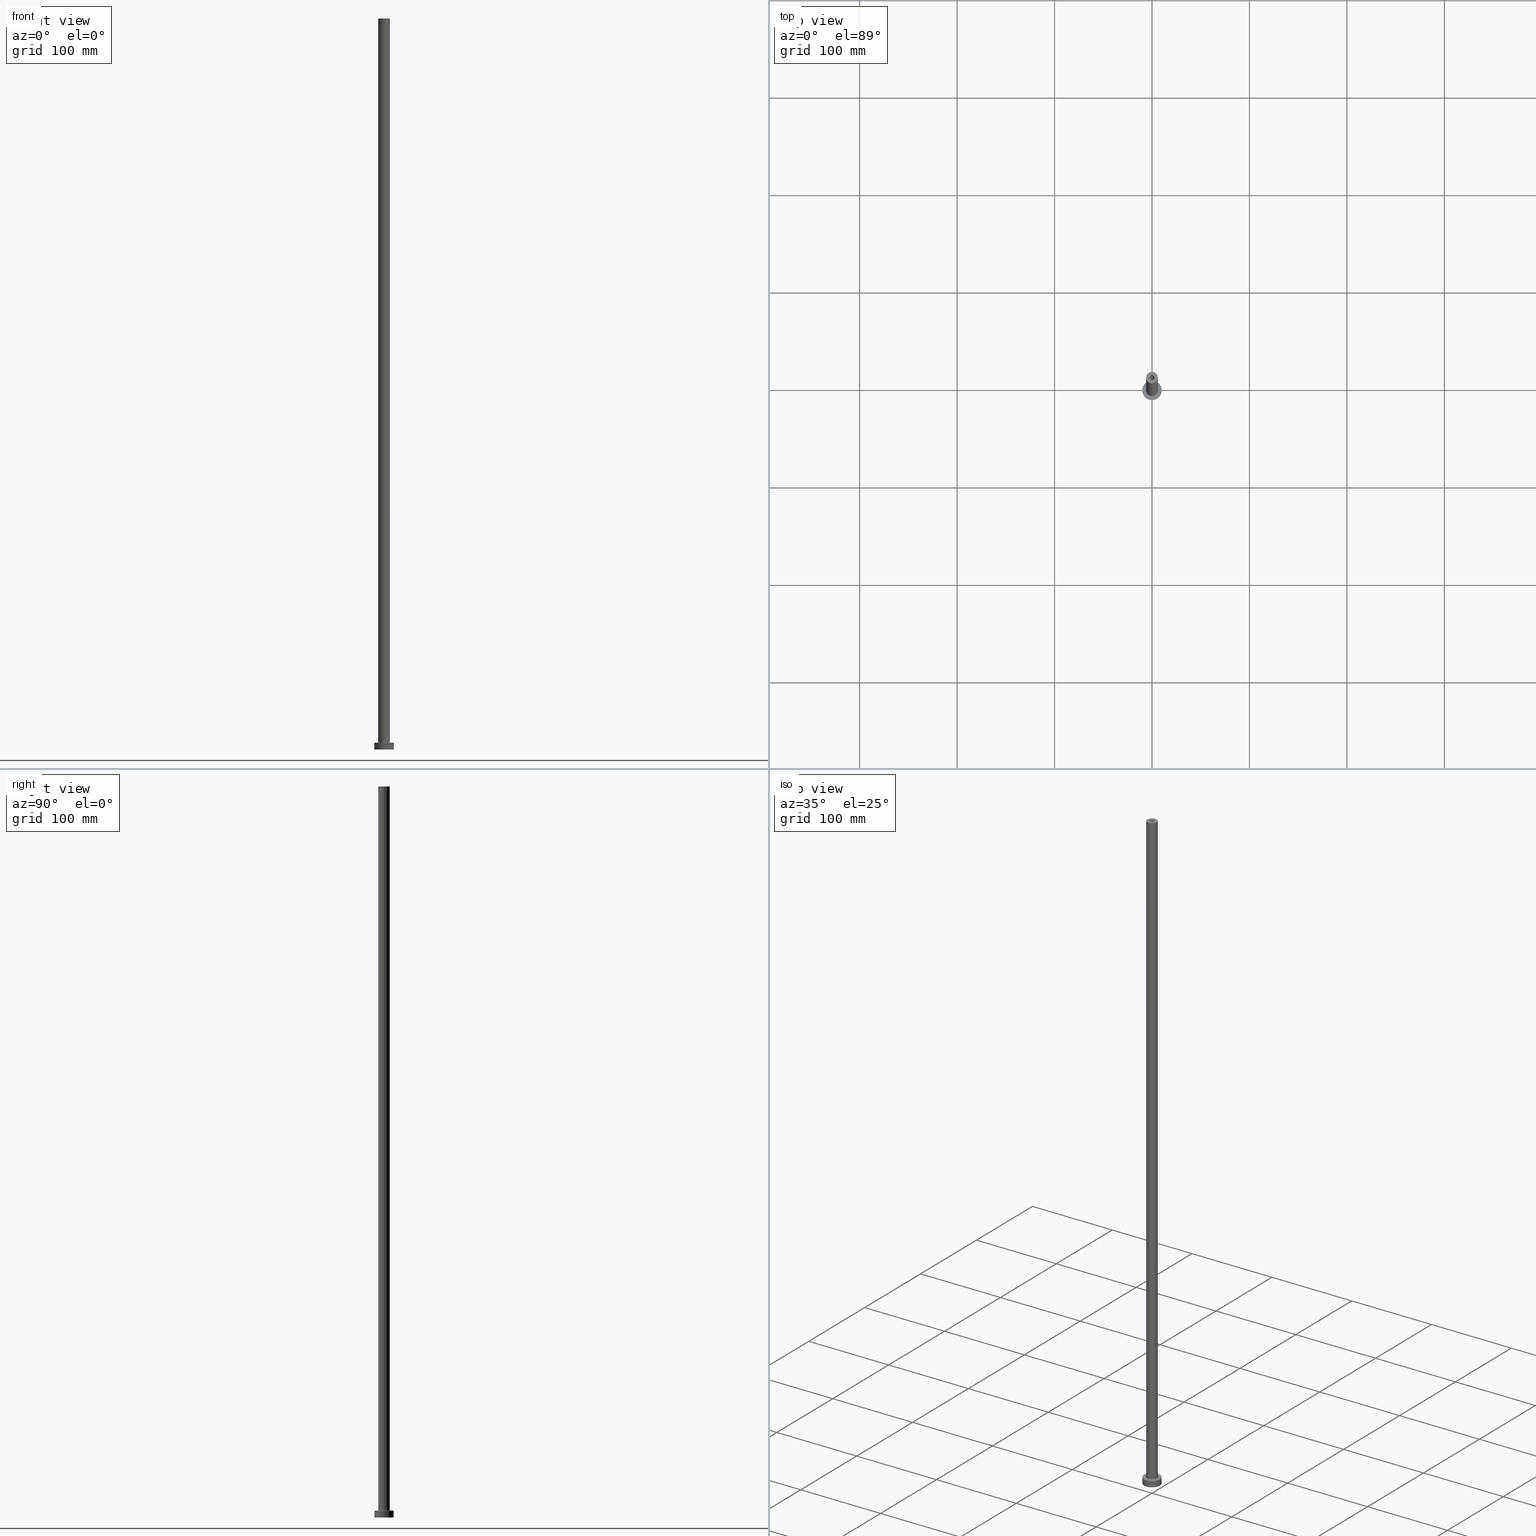
[diagram: canonical four-view strip — front | top / right | iso, engineering-drawing reading convention]
A machine part, canonical four-view strip (front | top / right | iso — engineering-drawing reading convention). The complete STEP part file that produces these views, byte-faithful:
ISO-10303-21;
HEADER;
FILE_DESCRIPTION (( 'STEP AP203' ),
    '1' );
FILE_NAME ('6461.STEP',
    '2023-02-13T16:43:49',
    ( '' ),
    ( '' ),
    'SwSTEP 2.0',
    'SolidWorks 2019',
    '' );
FILE_SCHEMA (( 'CONFIG_CONTROL_DESIGN' ));
ENDSEC;

DATA;
#1 =( GEOMETRIC_REPRESENTATION_CONTEXT ( 3 ) GLOBAL_UNCERTAINTY_ASSIGNED_CONTEXT ( ( #57 ) ) GLOBAL_UNIT_ASSIGNED_CONTEXT ( ( #332, #123, #370 ) ) REPRESENTATION_CONTEXT ( 'NONE', 'WORKASPACE' ) );
#2 = ORIENTED_EDGE ( 'NONE', *, *, #72, .F. ) ;
#3 = CARTESIAN_POINT ( 'NONE',  ( 0.000000000000000000, 0.000000000000000000, 0.000000000000000000 ) ) ;
#4 = EDGE_LOOP ( 'NONE', ( #216, #187 ) ) ;
#5 = CARTESIAN_POINT ( 'NONE',  ( -6.000000000000000888, 0.000000000000000000, 7.499999999999951150 ) ) ;
#6 = AXIS2_PLACEMENT_3D ( 'NONE', #267, #193, #406 ) ;
#7 = AXIS2_PLACEMENT_3D ( 'NONE', #391, #131, #94 ) ;
#8 = DIRECTION ( 'NONE',  ( -0.000000000000000000, -0.000000000000000000, -1.000000000000000000 ) ) ;
#9 = DIRECTION ( 'NONE',  ( -0.000000000000000000, -0.000000000000000000, -1.000000000000000000 ) ) ;
#10 = DIRECTION ( 'NONE',  ( 0.000000000000000000, 0.000000000000000000, 1.000000000000000000 ) ) ;
#11 = PERSON_AND_ORGANIZATION ( #323, #385 ) ;
#12 = DIRECTION ( 'NONE',  ( -0.000000000000000000, -0.000000000000000000, -1.000000000000000000 ) ) ;
#13 = AXIS2_PLACEMENT_3D ( 'NONE', #258, #41, #328 ) ;
#14 = CC_DESIGN_APPROVAL ( #132, ( #245 ) ) ;
#15 = DIRECTION ( 'NONE',  ( 0.000000000000000000, 0.000000000000000000, -1.000000000000000000 ) ) ;
#16 = APPROVAL_ROLE ( '' ) ;
#17 = EDGE_CURVE ( 'NONE', #221, #397, #121, .T. ) ;
#18 = DIRECTION ( 'NONE',  ( 0.000000000000000000, 0.000000000000000000, -1.000000000000000000 ) ) ;
#19 = DIRECTION ( 'NONE',  ( 0.000000000000000000, 0.000000000000000000, 1.000000000000000000 ) ) ;
#20 = PERSON_AND_ORGANIZATION ( #323, #385 ) ;
#21 = EDGE_LOOP ( 'NONE', ( #353, #398, #395, #177 ) ) ;
#22 = AXIS2_PLACEMENT_3D ( 'NONE', #263, #9, #160 ) ;
#23 = CIRCLE ( 'NONE', #399, 6.000000000000000888 ) ;
#24 = CARTESIAN_POINT ( 'NONE',  ( 0.000000000000000000, 0.000000000000000000, 705.0000000000000000 ) ) ;
#25 = CC_DESIGN_PERSON_AND_ORGANIZATION_ASSIGNMENT ( #298, #164, ( #245 ) ) ;
#26 = ORIENTED_EDGE ( 'NONE', *, *, #428, .F. ) ;
#27 = FACE_OUTER_BOUND ( 'NONE', #414, .T. ) ;
#28 = COORDINATED_UNIVERSAL_TIME_OFFSET ( 1, 0, .AHEAD. ) ;
#29 = ORIENTED_EDGE ( 'NONE', *, *, #77, .F. ) ;
#30 = CARTESIAN_POINT ( 'NONE',  ( 0.000000000000000000, 0.000000000000000000, 712.4953318805775098 ) ) ;
#31 = DATE_AND_TIME ( #318, #363 ) ;
#32 = EDGE_LOOP ( 'NONE', ( #202, #2 ) ) ;
#33 = DIRECTION ( 'NONE',  ( 0.000000000000000000, 0.000000000000000000, -1.000000000000000000 ) ) ;
#34 = EDGE_LOOP ( 'NONE', ( #387, #142 ) ) ;
#35 = EDGE_CURVE ( 'NONE', #100, #430, #178, .T. ) ;
#36 = CARTESIAN_POINT ( 'NONE',  ( 2.500000000000000000, 3.061616997868383141E-16, 705.0000000000000000 ) ) ;
#37 = DIRECTION ( 'NONE',  ( -0.000000000000000000, -0.000000000000000000, -1.000000000000000000 ) ) ;
#38 = AXIS2_PLACEMENT_3D ( 'NONE', #61, #380, #322 ) ;
#39 = DIRECTION ( 'NONE',  ( 1.224646799147353207E-16, 1.000000000000000000, -0.000000000000000000 ) ) ;
#40 = EDGE_CURVE ( 'NONE', #63, #96, #195, .T. ) ;
#41 = DIRECTION ( 'NONE',  ( 0.000000000000000000, 0.000000000000000000, 1.000000000000000000 ) ) ;
#42 = CARTESIAN_POINT ( 'NONE',  ( 0.000000000000000000, 0.000000000000000000, 750.0000000000000000 ) ) ;
#43 = APPLICATION_PROTOCOL_DEFINITION ( 'international standard', 'config_control_design', 1994, #224 ) ;
#44 = CIRCLE ( 'NONE', #38, 2.500000000000000000 ) ;
#45 = CARTESIAN_POINT ( 'NONE',  ( 0.000000000000000000, 0.000000000000000000, 7.000000000000000000 ) ) ;
#46 = EDGE_CURVE ( 'NONE', #96, #63, #80, .T. ) ;
#47 = DIRECTION ( 'NONE',  ( 1.000000000000000000, 0.000000000000000000, 0.000000000000000000 ) ) ;
#48 = DIRECTION ( 'NONE',  ( 1.000000000000000000, 0.000000000000000000, 0.000000000000000000 ) ) ;
#49 = FACE_OUTER_BOUND ( 'NONE', #449, .T. ) ;
#50 = APPLICATION_CONTEXT ( 'configuration controlled 3d designs of mechanical parts and assemblies' ) ;
#51 = DIRECTION ( 'NONE',  ( 0.000000000000000000, 0.000000000000000000, 1.000000000000000000 ) ) ;
#52 = ADVANCED_FACE ( 'NONE', ( #227 ), #365, .F. ) ;
#53 = COORDINATED_UNIVERSAL_TIME_OFFSET ( 1, 0, .AHEAD. ) ;
#54 = VECTOR ( 'NONE', #15, 1000.000000000000000 ) ;
#55 = AXIS2_PLACEMENT_3D ( 'NONE', #65, #58, #165 ) ;
#56 = CARTESIAN_POINT ( 'NONE',  ( 0.000000000000000000, 0.000000000000000000, 0.000000000000000000 ) ) ;
#57 = UNCERTAINTY_MEASURE_WITH_UNIT (LENGTH_MEASURE( 1.000000000000000082E-05 ), #332, 'distance_accuracy_value', 'NONE');
#58 = DIRECTION ( 'NONE',  ( -0.000000000000000000, -0.000000000000000000, -1.000000000000000000 ) ) ;
#59 = EDGE_LOOP ( 'NONE', ( #392, #98 ) ) ;
#60 = EDGE_CURVE ( 'NONE', #430, #100, #383, .T. ) ;
#61 = CARTESIAN_POINT ( 'NONE',  ( 0.000000000000000000, 0.000000000000000000, 705.0000000000000000 ) ) ;
#62 = CALENDAR_DATE ( 2023, 13, 2 ) ;
#63 = VERTEX_POINT ( 'NONE', #218 ) ;
#64 = CC_DESIGN_APPROVAL ( #326, ( #266 ) ) ;
#65 = CARTESIAN_POINT ( 'NONE',  ( 0.000000000000000000, 0.000000000000000000, 750.0000000000000000 ) ) ;
#66 = PERSON_AND_ORGANIZATION ( #323, #385 ) ;
#67 = VERTEX_POINT ( 'NONE', #359 ) ;
#68 = CARTESIAN_POINT ( 'NONE',  ( 2.649999999999999911, 3.245314017740485962E-16, 705.0000000000000000 ) ) ;
#69 = VERTEX_POINT ( 'NONE', #36 ) ;
#70 = DIRECTION ( 'NONE',  ( 0.000000000000000000, -1.000000000000000000, 0.000000000000000000 ) ) ;
#71 = VERTEX_POINT ( 'NONE', #324 ) ;
#72 = EDGE_CURVE ( 'NONE', #364, #71, #206, .T. ) ;
#73 = AXIS2_PLACEMENT_3D ( 'NONE', #184, #111, #327 ) ;
#74 = VECTOR ( 'NONE', #12, 1000.000000000000000 ) ;
#75 = DIRECTION ( 'NONE',  ( 1.000000000000000000, 0.000000000000000000, 0.000000000000000000 ) ) ;
#76 = ORIENTED_EDGE ( 'NONE', *, *, #140, .T. ) ;
#77 = EDGE_CURVE ( 'NONE', #313, #459, #337, .T. ) ;
#78 = ORIENTED_EDGE ( 'NONE', *, *, #147, .T. ) ;
#79 = VECTOR ( 'NONE', #301, 1000.000000000000000 ) ;
#80 = CIRCLE ( 'NONE', #13, 10.00000000000000000 ) ;
#81 = APPROVAL_PERSON_ORGANIZATION ( #168, #203, #386 ) ;
#82 = DIRECTION ( 'NONE',  ( 0.000000000000000000, 0.000000000000000000, -1.000000000000000000 ) ) ;
#83 = ORIENTED_EDGE ( 'NONE', *, *, #106, .T. ) ;
#84 = PLANE ( 'NONE',  #217 ) ;
#85 = CARTESIAN_POINT ( 'NONE',  ( -10.00000000000000000, 0.000000000000000000, 7.000000000000000000 ) ) ;
#86 = DIRECTION ( 'NONE',  ( 0.000000000000000000, 0.000000000000000000, 1.000000000000000000 ) ) ;
#87 = CIRCLE ( 'NONE', #208, 10.00000000000000000 ) ;
#88 = DIRECTION ( 'NONE',  ( 0.000000000000000000, 0.000000000000000000, 1.000000000000000000 ) ) ;
#89 = DIRECTION ( 'NONE',  ( 0.000000000000000000, 0.000000000000000000, 1.000000000000000000 ) ) ;
#90 = DIRECTION ( 'NONE',  ( -0.000000000000000000, -0.000000000000000000, -1.000000000000000000 ) ) ;
#91 = DIRECTION ( 'NONE',  ( 1.000000000000000000, 0.000000000000000000, 0.000000000000000000 ) ) ;
#92 = FACE_OUTER_BOUND ( 'NONE', #382, .T. ) ;
#93 = DIRECTION ( 'NONE',  ( 1.000000000000000000, 0.000000000000000000, 0.000000000000000000 ) ) ;
#94 = DIRECTION ( 'NONE',  ( -1.000000000000000000, 0.000000000000000000, 0.000000000000000000 ) ) ;
#95 = SECURITY_CLASSIFICATION_LEVEL ( 'unclassified' ) ;
#96 = VERTEX_POINT ( 'NONE', #196 ) ;
#97 = DIRECTION ( 'NONE',  ( 1.000000000000000000, 0.000000000000000000, 0.000000000000000000 ) ) ;
#98 = ORIENTED_EDGE ( 'NONE', *, *, #60, .F. ) ;
#99 = CARTESIAN_POINT ( 'NONE',  ( 0.000000000000000000, 0.000000000000000000, 712.4953318805775098 ) ) ;
#100 = VERTEX_POINT ( 'NONE', #117 ) ;
#101 = AXIS2_PLACEMENT_3D ( 'NONE', #331, #88, #297 ) ;
#102 = SECURITY_CLASSIFICATION ( '', '', #95 ) ;
#103 = DIRECTION ( 'NONE',  ( -1.000000000000000000, 0.000000000000000000, 0.000000000000000000 ) ) ;
#104 = ORIENTED_EDGE ( 'NONE', *, *, #192, .T. ) ;
#105 = FACE_OUTER_BOUND ( 'NONE', #285, .T. ) ;
#106 = EDGE_CURVE ( 'NONE', #313, #63, #304, .T. ) ;
#107 = ORIENTED_EDGE ( 'NONE', *, *, #46, .F. ) ;
#108 = DIRECTION ( 'NONE',  ( 1.000000000000000000, 0.000000000000000000, 0.000000000000000000 ) ) ;
#109 = DIRECTION ( 'NONE',  ( 0.000000000000000000, 0.000000000000000000, 1.000000000000000000 ) ) ;
#110 = APPROVAL_PERSON_ORGANIZATION ( #373, #132, #16 ) ;
#111 = DIRECTION ( 'NONE',  ( 0.000000000000000000, 0.000000000000000000, 1.000000000000000000 ) ) ;
#112 = ADVANCED_FACE ( 'NONE', ( #408, #234 ), #155, .F. ) ;
#113 = ORIENTED_EDGE ( 'NONE', *, *, #354, .F. ) ;
#114 = VERTEX_POINT ( 'NONE', #333 ) ;
#115 = CIRCLE ( 'NONE', #296, 6.500000000000000888 ) ;
#116 = EDGE_LOOP ( 'NONE', ( #457, #244, #76, #113 ) ) ;
#117 = CARTESIAN_POINT ( 'NONE',  ( -2.500000000000000000, 0.000000000000000000, 750.0000000000000000 ) ) ;
#118 = ADVANCED_FACE ( 'NONE', ( #49 ), #435, .T. ) ;
#119 = APPROVAL_DATE_TIME ( #188, #132 ) ;
#120 = CARTESIAN_POINT ( 'NONE',  ( 0.000000000000000000, 0.000000000000000000, 7.000000000000000000 ) ) ;
#121 = CIRCLE ( 'NONE', #356, 0.5000000000000004441 ) ;
#122 = APPROVAL_PERSON_ORGANIZATION ( #264, #326, #228 ) ;
#123 =( NAMED_UNIT ( * ) PLANE_ANGLE_UNIT ( ) SI_UNIT ( $, .RADIAN. ) );
#124 = EDGE_CURVE ( 'NONE', #288, #221, #161, .T. ) ;
#125 = FACE_OUTER_BOUND ( 'NONE', #34, .T. ) ;
#126 = CARTESIAN_POINT ( 'NONE',  ( 0.000000000000000000, 0.000000000000000000, 705.0000000000000000 ) ) ;
#127 = DIRECTION ( 'NONE',  ( -0.000000000000000000, -0.000000000000000000, -1.000000000000000000 ) ) ;
#128 = DATE_AND_TIME ( #308, #442 ) ;
#129 = CARTESIAN_POINT ( 'NONE',  ( 0.000000000000000000, 0.000000000000000000, 705.0000000000000000 ) ) ;
#130 = VECTOR ( 'NONE', #336, 1000.000000000000000 ) ;
#131 = DIRECTION ( 'NONE',  ( -0.000000000000000000, -0.000000000000000000, -1.000000000000000000 ) ) ;
#132 = APPROVAL ( #305, 'NEUR�EN�' ) ;
#133 = EDGE_LOOP ( 'NONE', ( #207, #149, #181, #421 ) ) ;
#134 = CARTESIAN_POINT ( 'NONE',  ( 0.000000000000000000, 0.000000000000000000, 750.0000000000000000 ) ) ;
#135 = ORIENTED_EDGE ( 'NONE', *, *, #445, .F. ) ;
#136 = CARTESIAN_POINT ( 'NONE',  ( 0.000000000000000000, 0.000000000000000000, 750.0000000000000000 ) ) ;
#137 = PERSON_AND_ORGANIZATION_ROLE ( 'design_supplier' ) ;
#138 = EDGE_LOOP ( 'NONE', ( #107, #453 ) ) ;
#139 = AXIS2_PLACEMENT_3D ( 'NONE', #404, #89, #238 ) ;
#140 = EDGE_CURVE ( 'NONE', #100, #295, #157, .T. ) ;
#141 = CARTESIAN_POINT ( 'NONE',  ( 10.00000000000000000, 1.224646799147353256E-15, 7.000000000000000000 ) ) ;
#142 = ORIENTED_EDGE ( 'NONE', *, *, #77, .T. ) ;
#143 = DESIGN_CONTEXT ( 'detailed design', #50, 'design' ) ;
#144 = CARTESIAN_POINT ( 'NONE',  ( 2.649999999999999911, 3.245314017740485962E-16, 0.000000000000000000 ) ) ;
#145 = ORIENTED_EDGE ( 'NONE', *, *, #438, .F. ) ;
#146 = CARTESIAN_POINT ( 'NONE',  ( -6.500000000000000888, 7.960204194457796463E-16, 7.499999999999951150 ) ) ;
#147 = EDGE_CURVE ( 'NONE', #71, #364, #411, .T. ) ;
#148 = CC_DESIGN_APPROVAL ( #203, ( #102 ) ) ;
#149 = ORIENTED_EDGE ( 'NONE', *, *, #152, .T. ) ;
#150 = ORIENTED_EDGE ( 'NONE', *, *, #124, .T. ) ;
#151 = DIRECTION ( 'NONE',  ( -1.000000000000000000, 1.224646799147351482E-16, 0.000000000000000000 ) ) ;
#152 = EDGE_CURVE ( 'NONE', #289, #364, #334, .T. ) ;
#153 = AXIS2_PLACEMENT_3D ( 'NONE', #42, #109, #75 ) ;
#154 = AXIS2_PLACEMENT_3D ( 'NONE', #30, #172, #311 ) ;
#155 = PLANE ( 'NONE',  #362 ) ;
#156 = LINE ( 'NONE', #191, #130 ) ;
#157 = LINE ( 'NONE', #338, #79 ) ;
#158 = CC_DESIGN_PERSON_AND_ORGANIZATION_ASSIGNMENT ( #20, #240, ( #266 ) ) ;
#159 = CARTESIAN_POINT ( 'NONE',  ( -10.00000000000000000, 0.000000000000000000, 7.000000000000000000 ) ) ;
#160 = DIRECTION ( 'NONE',  ( -1.000000000000000000, 0.000000000000000000, 0.000000000000000000 ) ) ;
#161 = CIRCLE ( 'NONE', #418, 6.000000000000000888 ) ;
#162 = AXIS2_PLACEMENT_3D ( 'NONE', #24, #450, #204 ) ;
#163 = DIRECTION ( 'NONE',  ( 1.000000000000000000, 0.000000000000000000, -0.000000000000000000 ) ) ;
#164 = PERSON_AND_ORGANIZATION_ROLE ( 'creator' ) ;
#165 = DIRECTION ( 'NONE',  ( -1.000000000000000000, 0.000000000000000000, 0.000000000000000000 ) ) ;
#166 = ADVANCED_FACE ( 'NONE', ( #403, #125 ), #84, .T. ) ;
#167 = FACE_OUTER_BOUND ( 'NONE', #279, .T. ) ;
#168 = PERSON_AND_ORGANIZATION ( #323, #385 ) ;
#169 = CIRCLE ( 'NONE', #310, 6.500000000000000888 ) ;
#170 = CYLINDRICAL_SURFACE ( 'NONE', #190, 2.649999999999999911 ) ;
#171 = ORIENTED_EDGE ( 'NONE', *, *, #366, .F. ) ;
#172 = DIRECTION ( 'NONE',  ( 0.000000000000000000, 0.000000000000000000, -1.000000000000000000 ) ) ;
#173 = APPROVAL_DATE_TIME ( #31, #203 ) ;
#174 = CC_DESIGN_PERSON_AND_ORGANIZATION_ASSIGNMENT ( #66, #176, ( #102 ) ) ;
#175 = PLANE ( 'NONE',  #412 ) ;
#176 = PERSON_AND_ORGANIZATION_ROLE ( 'classification_officer' ) ;
#177 = ORIENTED_EDGE ( 'NONE', *, *, #140, .F. ) ;
#178 = CIRCLE ( 'NONE', #73, 2.500000000000000000 ) ;
#179 = CARTESIAN_POINT ( 'NONE',  ( 6.000000000000000888, 7.347880794884119736E-16, 750.0000000000000000 ) ) ;
#180 = ORIENTED_EDGE ( 'NONE', *, *, #106, .F. ) ;
#181 = ORIENTED_EDGE ( 'NONE', *, *, #72, .T. ) ;
#182 = DIRECTION ( 'NONE',  ( 1.000000000000000000, 0.000000000000000000, 0.000000000000000000 ) ) ;
#183 = AXIS2_PLACEMENT_3D ( 'NONE', #286, #424, #108 ) ;
#184 = CARTESIAN_POINT ( 'NONE',  ( 0.000000000000000000, 0.000000000000000000, 750.0000000000000000 ) ) ;
#185 = ORIENTED_EDGE ( 'NONE', *, *, #379, .F. ) ;
#186 = EDGE_CURVE ( 'NONE', #67, #221, #444, .T. ) ;
#187 = ORIENTED_EDGE ( 'NONE', *, *, #354, .T. ) ;
#188 = DATE_AND_TIME ( #197, #394 ) ;
#189 = AXIS2_PLACEMENT_3D ( 'NONE', #461, #37, #182 ) ;
#190 = AXIS2_PLACEMENT_3D ( 'NONE', #99, #18, #341 ) ;
#191 = CARTESIAN_POINT ( 'NONE',  ( 2.500000000000000000, 3.061616997868383141E-16, 750.0000000000000000 ) ) ;
#192 = EDGE_CURVE ( 'NONE', #114, #397, #115, .T. ) ;
#193 = DIRECTION ( 'NONE',  ( 0.000000000000000000, 0.000000000000000000, 1.000000000000000000 ) ) ;
#194 = ADVANCED_BREP_SHAPE_REPRESENTATION ( '6461', ( #432, #139 ), #1 ) ;
#195 = CIRCLE ( 'NONE', #247, 10.00000000000000000 ) ;
#196 = CARTESIAN_POINT ( 'NONE',  ( -10.00000000000000000, 0.000000000000000000, 0.000000000000000000 ) ) ;
#197 = CALENDAR_DATE ( 2023, 13, 2 ) ;
#198 = DIRECTION ( 'NONE',  ( -0.000000000000000000, -0.000000000000000000, -1.000000000000000000 ) ) ;
#199 = ADVANCED_FACE ( 'NONE', ( #92 ), #434, .F. ) ;
#200 = CYLINDRICAL_SURFACE ( 'NONE', #154, 2.649999999999999911 ) ;
#201 = DATE_AND_TIME ( #243, #248 ) ;
#202 = ORIENTED_EDGE ( 'NONE', *, *, #147, .F. ) ;
#203 = APPROVAL ( #352, 'NEUR�EN�' ) ;
#204 = DIRECTION ( 'NONE',  ( 1.000000000000000000, 0.000000000000000000, -0.000000000000000000 ) ) ;
#205 = COORDINATED_UNIVERSAL_TIME_OFFSET ( 1, 0, .AHEAD. ) ;
#206 = CIRCLE ( 'NONE', #189, 2.649999999999999911 ) ;
#207 = ORIENTED_EDGE ( 'NONE', *, *, #428, .T. ) ;
#208 = AXIS2_PLACEMENT_3D ( 'NONE', #410, #10, #91 ) ;
#209 = FACE_BOUND ( 'NONE', #4, .T. ) ;
#210 = CC_DESIGN_PERSON_AND_ORGANIZATION_ASSIGNMENT ( #381, #137, ( #266 ) ) ;
#211 = DATE_TIME_ROLE ( 'classification_date' ) ;
#212 = ORIENTED_EDGE ( 'NONE', *, *, #124, .F. ) ;
#213 = CARTESIAN_POINT ( 'NONE',  ( -2.649999999999999911, 0.000000000000000000, 712.4953318805775098 ) ) ;
#214 = DATE_AND_TIME ( #62, #368 ) ;
#215 = LINE ( 'NONE', #179, #455 ) ;
#216 = ORIENTED_EDGE ( 'NONE', *, *, #237, .T. ) ;
#217 = AXIS2_PLACEMENT_3D ( 'NONE', #120, #86, #163 ) ;
#218 = CARTESIAN_POINT ( 'NONE',  ( 10.00000000000000000, 1.224646799147353256E-15, 0.000000000000000000 ) ) ;
#219 = CC_DESIGN_PERSON_AND_ORGANIZATION_ASSIGNMENT ( #11, #407, ( #350 ) ) ;
#220 = CARTESIAN_POINT ( 'NONE',  ( 0.000000000000000000, 0.000000000000000000, 750.0000000000000000 ) ) ;
#221 = VERTEX_POINT ( 'NONE', #5 ) ;
#222 = AXIS2_PLACEMENT_3D ( 'NONE', #136, #198, #103 ) ;
#223 = CC_DESIGN_SECURITY_CLASSIFICATION ( #102, ( #266 ) ) ;
#224 = APPLICATION_CONTEXT ( 'configuration controlled 3d designs of mechanical parts and assemblies' ) ;
#225 = ORIENTED_EDGE ( 'NONE', *, *, #17, .T. ) ;
#226 = ADVANCED_FACE ( 'NONE', ( #232 ), #372, .T. ) ;
#227 = FACE_OUTER_BOUND ( 'NONE', #116, .T. ) ;
#228 = APPROVAL_ROLE ( '' ) ;
#229 = EDGE_CURVE ( 'NONE', #349, #67, #393, .T. ) ;
#230 = TOROIDAL_SURFACE ( 'NONE', #303, 6.500000000000000888, 0.5000000000000000000 ) ;
#231 = CARTESIAN_POINT ( 'NONE',  ( 2.500000000000000000, 3.061616997868383141E-16, 750.0000000000000000 ) ) ;
#232 = FACE_OUTER_BOUND ( 'NONE', #255, .T. ) ;
#233 = APPLICATION_PROTOCOL_DEFINITION ( 'international standard', 'config_control_design', 1994, #50 ) ;
#234 = FACE_OUTER_BOUND ( 'NONE', #138, .T. ) ;
#235 = MECHANICAL_CONTEXT ( 'NONE', #224, 'mechanical' ) ;
#236 = DIRECTION ( 'NONE',  ( -0.000000000000000000, -0.000000000000000000, -1.000000000000000000 ) ) ;
#237 = EDGE_CURVE ( 'NONE', #295, #69, #290, .T. ) ;
#238 = DIRECTION ( 'NONE',  ( 1.000000000000000000, 0.000000000000000000, 0.000000000000000000 ) ) ;
#239 = FACE_OUTER_BOUND ( 'NONE', #400, .T. ) ;
#240 = PERSON_AND_ORGANIZATION_ROLE ( 'creator' ) ;
#241 = ORIENTED_EDGE ( 'NONE', *, *, #321, .F. ) ;
#242 = DIRECTION ( 'NONE',  ( 1.000000000000000000, 0.000000000000000000, 0.000000000000000000 ) ) ;
#243 = CALENDAR_DATE ( 2023, 13, 2 ) ;
#244 = ORIENTED_EDGE ( 'NONE', *, *, #60, .T. ) ;
#245 = PRODUCT_DEFINITION ( 'NEZN�M�', '', #266, #143 ) ;
#246 = FACE_OUTER_BOUND ( 'NONE', #133, .T. ) ;
#247 = AXIS2_PLACEMENT_3D ( 'NONE', #3, #293, #261 ) ;
#248 = LOCAL_TIME ( 17, 43, 49.00000000000000000, #28 ) ;
#249 = DIRECTION ( 'NONE',  ( 0.000000000000000000, 0.000000000000000000, 1.000000000000000000 ) ) ;
#250 = APPROVAL_DATE_TIME ( #201, #326 ) ;
#251 = ORIENTED_EDGE ( 'NONE', *, *, #366, .T. ) ;
#252 = CYLINDRICAL_SURFACE ( 'NONE', #7, 10.00000000000000000 ) ;
#253 = ORIENTED_EDGE ( 'NONE', *, *, #379, .T. ) ;
#254 = CARTESIAN_POINT ( 'NONE',  ( 6.500000000000000888, 0.000000000000000000, 7.499999999999951150 ) ) ;
#255 = EDGE_LOOP ( 'NONE', ( #283, #325, #150, #343 ) ) ;
#256 = ADVANCED_FACE ( 'NONE', ( #246 ), #170, .F. ) ;
#257 = AXIS2_PLACEMENT_3D ( 'NONE', #340, #249, #446 ) ;
#258 = CARTESIAN_POINT ( 'NONE',  ( 0.000000000000000000, 0.000000000000000000, 0.000000000000000000 ) ) ;
#259 = EDGE_LOOP ( 'NONE', ( #251, #429 ) ) ;
#260 = EDGE_CURVE ( 'NONE', #358, #71, #346, .T. ) ;
#261 = DIRECTION ( 'NONE',  ( 1.000000000000000000, 0.000000000000000000, 0.000000000000000000 ) ) ;
#262 = ORIENTED_EDGE ( 'NONE', *, *, #389, .F. ) ;
#263 = CARTESIAN_POINT ( 'NONE',  ( 0.000000000000000000, 0.000000000000000000, 7.000000000000000000 ) ) ;
#264 = PERSON_AND_ORGANIZATION ( #323, #385 ) ;
#265 = CARTESIAN_POINT ( 'NONE',  ( 0.000000000000000000, 0.000000000000000000, 0.000000000000000000 ) ) ;
#266 = PRODUCT_DEFINITION_FORMATION_WITH_SPECIFIED_SOURCE ( 'LIBOVOLN�', '', #350, .NOT_KNOWN. ) ;
#267 = CARTESIAN_POINT ( 'NONE',  ( 0.000000000000000000, 0.000000000000000000, 7.499999999999951150 ) ) ;
#268 = CARTESIAN_POINT ( 'NONE',  ( -6.500000000000000888, 7.960204194457796463E-16, 6.999999999999975131 ) ) ;
#269 = DIRECTION ( 'NONE',  ( 1.000000000000000000, 0.000000000000000000, -0.000000000000000000 ) ) ;
#270 = ADVANCED_FACE ( 'NONE', ( #167 ), #377, .T. ) ;
#271 = DIRECTION ( 'NONE',  ( 0.000000000000000000, 0.000000000000000000, 1.000000000000000000 ) ) ;
#272 = DATE_TIME_ROLE ( 'creation_date' ) ;
#273 = CLOSED_SHELL ( 'NONE', ( #330, #256, #199, #226, #335, #118, #166, #112, #270, #306, #344, #300, #287, #52 ) ) ;
#274 = CARTESIAN_POINT ( 'NONE',  ( 0.000000000000000000, 0.000000000000000000, 705.0000000000000000 ) ) ;
#275 = PRODUCT_RELATED_PRODUCT_CATEGORY ( 'detail', '', ( #350 ) ) ;
#276 = CIRCLE ( 'NONE', #426, 2.649999999999999911 ) ;
#277 = ORIENTED_EDGE ( 'NONE', *, *, #431, .T. ) ;
#278 = CARTESIAN_POINT ( 'NONE',  ( 0.000000000000000000, 0.000000000000000000, 7.499999999999951150 ) ) ;
#279 = EDGE_LOOP ( 'NONE', ( #262, #171, #427, #451 ) ) ;
#280 = FACE_OUTER_BOUND ( 'NONE', #21, .T. ) ;
#281 = CC_DESIGN_DATE_AND_TIME_ASSIGNMENT ( #214, #211, ( #102 ) ) ;
#282 = FACE_OUTER_BOUND ( 'NONE', #315, .T. ) ;
#283 = ORIENTED_EDGE ( 'NONE', *, *, #229, .F. ) ;
#284 = CARTESIAN_POINT ( 'NONE',  ( 0.000000000000000000, 0.000000000000000000, 750.0000000000000000 ) ) ;
#285 = EDGE_LOOP ( 'NONE', ( #29, #83, #378, #135 ) ) ;
#286 = CARTESIAN_POINT ( 'NONE',  ( 0.000000000000000000, 0.000000000000000000, 750.0000000000000000 ) ) ;
#287 = ADVANCED_FACE ( 'NONE', ( #209, #282 ), #388, .F. ) ;
#288 = VERTEX_POINT ( 'NONE', #419 ) ;
#289 = VERTEX_POINT ( 'NONE', #68 ) ;
#290 = CIRCLE ( 'NONE', #345, 2.500000000000000000 ) ;
#291 = AXIS2_PLACEMENT_3D ( 'NONE', #126, #367, #441 ) ;
#292 = ORIENTED_EDGE ( 'NONE', *, *, #260, .T. ) ;
#293 = DIRECTION ( 'NONE',  ( 0.000000000000000000, 0.000000000000000000, 1.000000000000000000 ) ) ;
#294 = PRODUCT_DEFINITION_SHAPE ( 'NONE', 'NONE',  #245 ) ;
#295 = VERTEX_POINT ( 'NONE', #348 ) ;
#296 = AXIS2_PLACEMENT_3D ( 'NONE', #409, #236, #47 ) ;
#297 = DIRECTION ( 'NONE',  ( 1.000000000000000000, 0.000000000000000000, 0.000000000000000000 ) ) ;
#298 = PERSON_AND_ORGANIZATION ( #323, #385 ) ;
#299 = CARTESIAN_POINT ( 'NONE',  ( 0.000000000000000000, 0.000000000000000000, 7.499999999999951150 ) ) ;
#300 = ADVANCED_FACE ( 'NONE', ( #27 ), #200, .F. ) ;
#301 = DIRECTION ( 'NONE',  ( 0.000000000000000000, 0.000000000000000000, -1.000000000000000000 ) ) ;
#302 = DIRECTION ( 'NONE',  ( 0.000000000000000000, 0.000000000000000000, 1.000000000000000000 ) ) ;
#303 = AXIS2_PLACEMENT_3D ( 'NONE', #278, #415, #242 ) ;
#304 = LINE ( 'NONE', #440, #374 ) ;
#305 = APPROVAL_STATUS ( 'not_yet_approved' ) ;
#306 = ADVANCED_FACE ( 'NONE', ( #314, #351 ), #175, .T. ) ;
#307 = DIRECTION ( 'NONE',  ( -0.000000000000000000, -0.000000000000000000, -1.000000000000000000 ) ) ;
#308 = CALENDAR_DATE ( 2023, 13, 2 ) ;
#309 = DIRECTION ( 'NONE',  ( 1.000000000000000000, 0.000000000000000000, -0.000000000000000000 ) ) ;
#310 = AXIS2_PLACEMENT_3D ( 'NONE', #45, #8, #93 ) ;
#311 = DIRECTION ( 'NONE',  ( -1.000000000000000000, 0.000000000000000000, 0.000000000000000000 ) ) ;
#312 = SHAPE_DEFINITION_REPRESENTATION ( #294, #194 ) ;
#313 = VERTEX_POINT ( 'NONE', #141 ) ;
#314 = FACE_BOUND ( 'NONE', #59, .T. ) ;
#315 = EDGE_LOOP ( 'NONE', ( #26, #241 ) ) ;
#316 = DIRECTION ( 'NONE',  ( 0.000000000000000000, 0.000000000000000000, 1.000000000000000000 ) ) ;
#317 = VECTOR ( 'NONE', #127, 1000.000000000000000 ) ;
#318 = CALENDAR_DATE ( 2023, 13, 2 ) ;
#319 = CIRCLE ( 'NONE', #183, 6.000000000000000888 ) ;
#320 = EDGE_LOOP ( 'NONE', ( #104, #277 ) ) ;
#321 = EDGE_CURVE ( 'NONE', #289, #358, #276, .T. ) ;
#322 = DIRECTION ( 'NONE',  ( 1.000000000000000000, 0.000000000000000000, 0.000000000000000000 ) ) ;
#323 = PERSON ( 'NEUR�EN�', 'NEUR�EN�', 'NEUR�EN�', ('NEUR�EN�'), ('NEUR�EN�'), ('NEUR�EN�') ) ;
#324 = CARTESIAN_POINT ( 'NONE',  ( -2.649999999999999911, 0.000000000000000000, 0.000000000000000000 ) ) ;
#325 = ORIENTED_EDGE ( 'NONE', *, *, #389, .T. ) ;
#326 = APPROVAL ( #402, 'NEUR�EN�' ) ;
#327 = DIRECTION ( 'NONE',  ( 1.000000000000000000, 0.000000000000000000, 0.000000000000000000 ) ) ;
#328 = DIRECTION ( 'NONE',  ( 1.000000000000000000, 0.000000000000000000, 0.000000000000000000 ) ) ;
#329 = AXIS2_PLACEMENT_3D ( 'NONE', #254, #70, #33 ) ;
#330 = ADVANCED_FACE ( 'NONE', ( #280 ), #416, .F. ) ;
#331 = CARTESIAN_POINT ( 'NONE',  ( 0.000000000000000000, 0.000000000000000000, 7.000000000000000000 ) ) ;
#332 =( LENGTH_UNIT ( ) NAMED_UNIT ( * ) SI_UNIT ( .MILLI., .METRE. ) );
#333 = CARTESIAN_POINT ( 'NONE',  ( 6.500000000000000888, 0.000000000000000000, 6.999999999999975131 ) ) ;
#334 = LINE ( 'NONE', #443, #54 ) ;
#335 = ADVANCED_FACE ( 'NONE', ( #105 ), #252, .T. ) ;
#336 = DIRECTION ( 'NONE',  ( 0.000000000000000000, 0.000000000000000000, -1.000000000000000000 ) ) ;
#337 = CIRCLE ( 'NONE', #101, 10.00000000000000000 ) ;
#338 = CARTESIAN_POINT ( 'NONE',  ( -2.500000000000000000, 0.000000000000000000, 750.0000000000000000 ) ) ;
#339 = LINE ( 'NONE', #159, #74 ) ;
#340 = CARTESIAN_POINT ( 'NONE',  ( 0.000000000000000000, 0.000000000000000000, 750.0000000000000000 ) ) ;
#341 = DIRECTION ( 'NONE',  ( -1.000000000000000000, 0.000000000000000000, 0.000000000000000000 ) ) ;
#342 = COORDINATED_UNIVERSAL_TIME_OFFSET ( 1, 0, .AHEAD. ) ;
#343 = ORIENTED_EDGE ( 'NONE', *, *, #186, .F. ) ;
#344 = ADVANCED_FACE ( 'NONE', ( #239 ), #230, .F. ) ;
#345 = AXIS2_PLACEMENT_3D ( 'NONE', #129, #452, #456 ) ;
#346 = LINE ( 'NONE', #213, #357 ) ;
#347 = ORIENTED_EDGE ( 'NONE', *, *, #401, .F. ) ;
#348 = CARTESIAN_POINT ( 'NONE',  ( -2.500000000000000000, 0.000000000000000000, 705.0000000000000000 ) ) ;
#349 = VERTEX_POINT ( 'NONE', #448 ) ;
#350 = PRODUCT ( '6461', '6461', '', ( #235 ) ) ;
#351 = FACE_OUTER_BOUND ( 'NONE', #259, .T. ) ;
#352 = APPROVAL_STATUS ( 'not_yet_approved' ) ;
#353 = ORIENTED_EDGE ( 'NONE', *, *, #35, .T. ) ;
#354 = EDGE_CURVE ( 'NONE', #69, #295, #44, .T. ) ;
#355 = DIRECTION ( 'NONE',  ( -0.000000000000000000, -0.000000000000000000, -1.000000000000000000 ) ) ;
#356 = AXIS2_PLACEMENT_3D ( 'NONE', #146, #39, #151 ) ;
#357 = VECTOR ( 'NONE', #384, 1000.000000000000000 ) ;
#358 = VERTEX_POINT ( 'NONE', #458 ) ;
#359 = CARTESIAN_POINT ( 'NONE',  ( -6.000000000000000888, 0.000000000000000000, 750.0000000000000000 ) ) ;
#360 = DIRECTION ( 'NONE',  ( -1.000000000000000000, 0.000000000000000000, 0.000000000000000000 ) ) ;
#361 = ORIENTED_EDGE ( 'NONE', *, *, #431, .F. ) ;
#362 = AXIS2_PLACEMENT_3D ( 'NONE', #56, #271, #269 ) ;
#363 = LOCAL_TIME ( 17, 43, 49.00000000000000000, #205 ) ;
#364 = VERTEX_POINT ( 'NONE', #144 ) ;
#365 = CYLINDRICAL_SURFACE ( 'NONE', #405, 2.500000000000000000 ) ;
#366 = EDGE_CURVE ( 'NONE', #67, #349, #319, .T. ) ;
#367 = DIRECTION ( 'NONE',  ( 0.000000000000000000, 0.000000000000000000, 1.000000000000000000 ) ) ;
#368 = LOCAL_TIME ( 17, 43, 49.00000000000000000, #342 ) ;
#369 = CARTESIAN_POINT ( 'NONE',  ( -6.000000000000000888, 0.000000000000000000, 750.0000000000000000 ) ) ;
#370 =( NAMED_UNIT ( * ) SI_UNIT ( $, .STERADIAN. ) SOLID_ANGLE_UNIT ( ) );
#371 = CC_DESIGN_DATE_AND_TIME_ASSIGNMENT ( #128, #272, ( #245 ) ) ;
#372 = CYLINDRICAL_SURFACE ( 'NONE', #222, 6.000000000000000888 ) ;
#373 = PERSON_AND_ORGANIZATION ( #323, #385 ) ;
#374 = VECTOR ( 'NONE', #90, 1000.000000000000000 ) ;
#375 = AXIS2_PLACEMENT_3D ( 'NONE', #284, #413, #422 ) ;
#376 = DIRECTION ( 'NONE',  ( 1.000000000000000000, 0.000000000000000000, 0.000000000000000000 ) ) ;
#377 = CYLINDRICAL_SURFACE ( 'NONE', #55, 6.000000000000000888 ) ;
#378 = ORIENTED_EDGE ( 'NONE', *, *, #40, .T. ) ;
#379 = EDGE_CURVE ( 'NONE', #288, #114, #420, .T. ) ;
#380 = DIRECTION ( 'NONE',  ( 0.000000000000000000, 0.000000000000000000, 1.000000000000000000 ) ) ;
#381 = PERSON_AND_ORGANIZATION ( #323, #385 ) ;
#382 = EDGE_LOOP ( 'NONE', ( #347, #225, #417, #185 ) ) ;
#383 = CIRCLE ( 'NONE', #153, 2.500000000000000000 ) ;
#384 = DIRECTION ( 'NONE',  ( 0.000000000000000000, 0.000000000000000000, -1.000000000000000000 ) ) ;
#385 = ORGANIZATION ( 'NEUR�EN�', 'NEUR�EN�', '' ) ;
#386 = APPROVAL_ROLE ( '' ) ;
#387 = ORIENTED_EDGE ( 'NONE', *, *, #438, .T. ) ;
#388 = PLANE ( 'NONE',  #162 ) ;
#389 = EDGE_CURVE ( 'NONE', #349, #288, #215, .T. ) ;
#390 = ORIENTED_EDGE ( 'NONE', *, *, #321, .T. ) ;
#391 = CARTESIAN_POINT ( 'NONE',  ( 0.000000000000000000, 0.000000000000000000, 7.000000000000000000 ) ) ;
#392 = ORIENTED_EDGE ( 'NONE', *, *, #35, .F. ) ;
#393 = CIRCLE ( 'NONE', #257, 6.000000000000000888 ) ;
#394 = LOCAL_TIME ( 17, 43, 49.00000000000000000, #53 ) ;
#395 = ORIENTED_EDGE ( 'NONE', *, *, #237, .F. ) ;
#396 = ORIENTED_EDGE ( 'NONE', *, *, #46, .T. ) ;
#397 = VERTEX_POINT ( 'NONE', #268 ) ;
#398 = ORIENTED_EDGE ( 'NONE', *, *, #460, .T. ) ;
#399 = AXIS2_PLACEMENT_3D ( 'NONE', #439, #302, #48 ) ;
#400 = EDGE_LOOP ( 'NONE', ( #423, #212, #253, #361 ) ) ;
#401 = EDGE_CURVE ( 'NONE', #221, #288, #23, .T. ) ;
#402 = APPROVAL_STATUS ( 'not_yet_approved' ) ;
#403 = FACE_BOUND ( 'NONE', #320, .T. ) ;
#404 = CARTESIAN_POINT ( 'NONE',  ( 0.000000000000000000, 0.000000000000000000, 0.000000000000000000 ) ) ;
#405 = AXIS2_PLACEMENT_3D ( 'NONE', #220, #82, #360 ) ;
#406 = DIRECTION ( 'NONE',  ( 1.000000000000000000, 0.000000000000000000, 0.000000000000000000 ) ) ;
#407 = PERSON_AND_ORGANIZATION_ROLE ( 'design_owner' ) ;
#408 = FACE_BOUND ( 'NONE', #32, .T. ) ;
#409 = CARTESIAN_POINT ( 'NONE',  ( 0.000000000000000000, 0.000000000000000000, 7.000000000000000000 ) ) ;
#410 = CARTESIAN_POINT ( 'NONE',  ( 0.000000000000000000, 0.000000000000000000, 7.000000000000000000 ) ) ;
#411 = CIRCLE ( 'NONE', #454, 2.649999999999999911 ) ;
#412 = AXIS2_PLACEMENT_3D ( 'NONE', #134, #316, #309 ) ;
#413 = DIRECTION ( 'NONE',  ( 0.000000000000000000, 0.000000000000000000, -1.000000000000000000 ) ) ;
#414 = EDGE_LOOP ( 'NONE', ( #425, #390, #292, #78 ) ) ;
#415 = DIRECTION ( 'NONE',  ( 0.000000000000000000, 0.000000000000000000, 1.000000000000000000 ) ) ;
#416 = CYLINDRICAL_SURFACE ( 'NONE', #375, 2.500000000000000000 ) ;
#417 = ORIENTED_EDGE ( 'NONE', *, *, #192, .F. ) ;
#418 = AXIS2_PLACEMENT_3D ( 'NONE', #299, #51, #437 ) ;
#419 = CARTESIAN_POINT ( 'NONE',  ( 6.000000000000000888, 7.347880794884119736E-16, 7.499999999999951150 ) ) ;
#420 = CIRCLE ( 'NONE', #329, 0.5000000000000004441 ) ;
#421 = ORIENTED_EDGE ( 'NONE', *, *, #260, .F. ) ;
#422 = DIRECTION ( 'NONE',  ( -1.000000000000000000, 0.000000000000000000, 0.000000000000000000 ) ) ;
#423 = ORIENTED_EDGE ( 'NONE', *, *, #17, .F. ) ;
#424 = DIRECTION ( 'NONE',  ( 0.000000000000000000, 0.000000000000000000, 1.000000000000000000 ) ) ;
#425 = ORIENTED_EDGE ( 'NONE', *, *, #152, .F. ) ;
#426 = AXIS2_PLACEMENT_3D ( 'NONE', #274, #19, #97 ) ;
#427 = ORIENTED_EDGE ( 'NONE', *, *, #186, .T. ) ;
#428 = EDGE_CURVE ( 'NONE', #358, #289, #447, .T. ) ;
#429 = ORIENTED_EDGE ( 'NONE', *, *, #229, .T. ) ;
#430 = VERTEX_POINT ( 'NONE', #231 ) ;
#431 = EDGE_CURVE ( 'NONE', #397, #114, #169, .T. ) ;
#432 = MANIFOLD_SOLID_BREP ( 'Odebrat vysunut�m4', #273 ) ;
#433 = ORIENTED_EDGE ( 'NONE', *, *, #445, .T. ) ;
#434 = TOROIDAL_SURFACE ( 'NONE', #6, 6.500000000000000888, 0.5000000000000000000 ) ;
#435 = CYLINDRICAL_SURFACE ( 'NONE', #22, 10.00000000000000000 ) ;
#436 = COORDINATED_UNIVERSAL_TIME_OFFSET ( 1, 0, .AHEAD. ) ;
#437 = DIRECTION ( 'NONE',  ( 1.000000000000000000, 0.000000000000000000, 0.000000000000000000 ) ) ;
#438 = EDGE_CURVE ( 'NONE', #459, #313, #87, .T. ) ;
#439 = CARTESIAN_POINT ( 'NONE',  ( 0.000000000000000000, 0.000000000000000000, 7.499999999999951150 ) ) ;
#440 = CARTESIAN_POINT ( 'NONE',  ( 10.00000000000000000, 1.224646799147353256E-15, 7.000000000000000000 ) ) ;
#441 = DIRECTION ( 'NONE',  ( 1.000000000000000000, 0.000000000000000000, 0.000000000000000000 ) ) ;
#442 = LOCAL_TIME ( 17, 43, 49.00000000000000000, #436 ) ;
#443 = CARTESIAN_POINT ( 'NONE',  ( 2.649999999999999911, 3.245314017740485962E-16, 712.4953318805775098 ) ) ;
#444 = LINE ( 'NONE', #369, #317 ) ;
#445 = EDGE_CURVE ( 'NONE', #459, #96, #339, .T. ) ;
#446 = DIRECTION ( 'NONE',  ( 1.000000000000000000, 0.000000000000000000, 0.000000000000000000 ) ) ;
#447 = CIRCLE ( 'NONE', #291, 2.649999999999999911 ) ;
#448 = CARTESIAN_POINT ( 'NONE',  ( 6.000000000000000888, 7.347880794884119736E-16, 750.0000000000000000 ) ) ;
#449 = EDGE_LOOP ( 'NONE', ( #180, #145, #433, #396 ) ) ;
#450 = DIRECTION ( 'NONE',  ( 0.000000000000000000, 0.000000000000000000, 1.000000000000000000 ) ) ;
#451 = ORIENTED_EDGE ( 'NONE', *, *, #401, .T. ) ;
#452 = DIRECTION ( 'NONE',  ( 0.000000000000000000, 0.000000000000000000, 1.000000000000000000 ) ) ;
#453 = ORIENTED_EDGE ( 'NONE', *, *, #40, .F. ) ;
#454 = AXIS2_PLACEMENT_3D ( 'NONE', #265, #307, #376 ) ;
#455 = VECTOR ( 'NONE', #355, 1000.000000000000000 ) ;
#456 = DIRECTION ( 'NONE',  ( 1.000000000000000000, 0.000000000000000000, 0.000000000000000000 ) ) ;
#457 = ORIENTED_EDGE ( 'NONE', *, *, #460, .F. ) ;
#458 = CARTESIAN_POINT ( 'NONE',  ( -2.649999999999999911, 0.000000000000000000, 705.0000000000000000 ) ) ;
#459 = VERTEX_POINT ( 'NONE', #85 ) ;
#460 = EDGE_CURVE ( 'NONE', #430, #69, #156, .T. ) ;
#461 = CARTESIAN_POINT ( 'NONE',  ( 0.000000000000000000, 0.000000000000000000, 0.000000000000000000 ) ) ;
ENDSEC;
END-ISO-10303-21;
